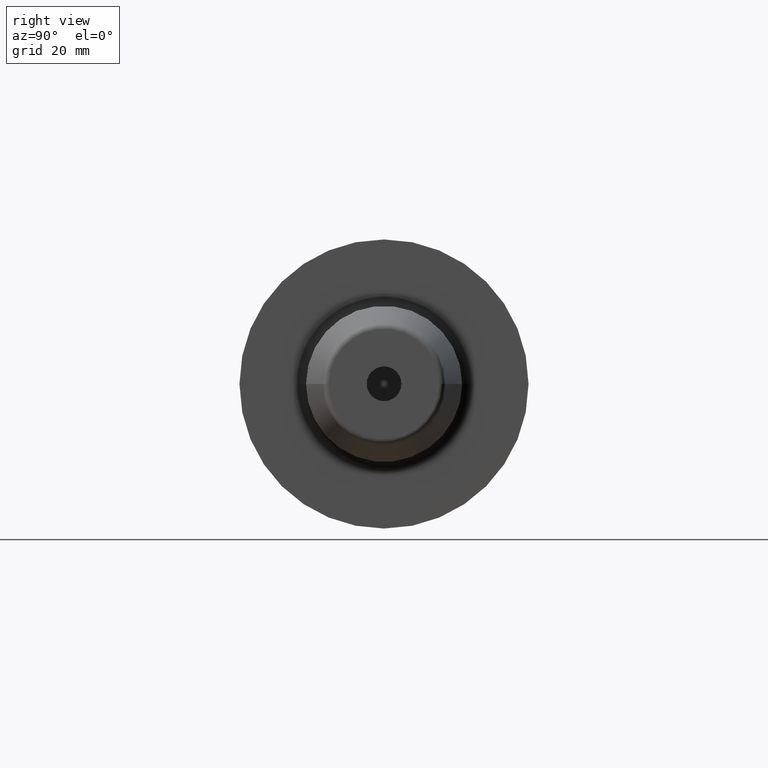
[diagram: clean part render]
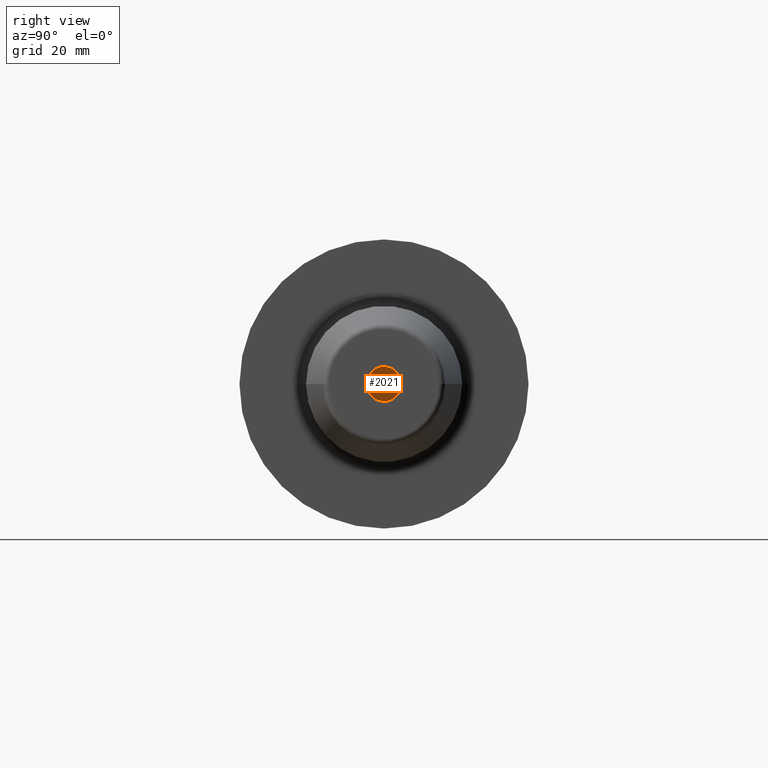
[diagram: same view with one face highlighted and labeled with its STEP entity id]
A machine part, right view. The second image highlights one B-rep face of the part: STEP entity #2021.
In plain terms, the highlighted planar face has unit normal (-1, 0, 0).
Its self-contained STEP definition (entity closure, byte-faithful):
#726=CARTESIAN_POINT('',(4.4E1,0.E0,0.E0));
#727=DIRECTION('',(-1.E0,0.E0,0.E0));
#728=DIRECTION('',(0.E0,-1.E0,0.E0));
#729=AXIS2_PLACEMENT_3D('',#726,#727,#728);
#731=CARTESIAN_POINT('',(4.4E1,0.E0,0.E0));
#732=DIRECTION('',(-1.E0,0.E0,0.E0));
#733=DIRECTION('',(0.E0,1.E0,0.E0));
#734=AXIS2_PLACEMENT_3D('',#731,#732,#733);
#880=CARTESIAN_POINT('',(4.4E1,-3.E0,0.E0));
#881=CARTESIAN_POINT('',(4.4E1,3.E0,0.E0));
#882=VERTEX_POINT('',#880);
#883=VERTEX_POINT('',#881);
#2012=CARTESIAN_POINT('',(4.4E1,0.E0,0.E0));
#2013=DIRECTION('',(-1.E0,0.E0,0.E0));
#2014=DIRECTION('',(0.E0,-1.E0,0.E0));
#2015=AXIS2_PLACEMENT_3D('',#2012,#2013,#2014);
#2016=PLANE('',#2015);
#2017=ORIENTED_EDGE('',*,*,#1992,.T.);
#2018=ORIENTED_EDGE('',*,*,#2006,.T.);
#2019=EDGE_LOOP('',(#2017,#2018));
#2020=FACE_OUTER_BOUND('',#2019,.F.);
#2021=ADVANCED_FACE('',(#2020),#2016,.F.);
#730=CIRCLE('',#729,3.E0);
#735=CIRCLE('',#734,3.E0);
#1992=EDGE_CURVE('',#882,#883,#730,.T.);
#2006=EDGE_CURVE('',#883,#882,#735,.T.);